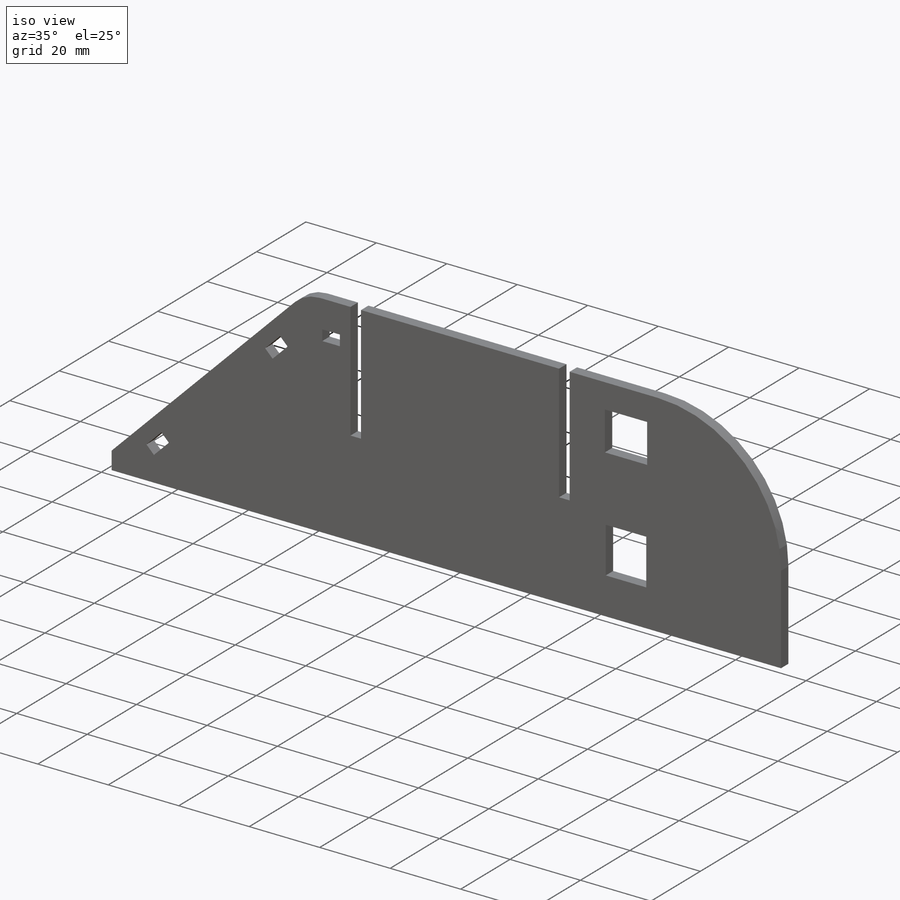
[diagram: iso view]
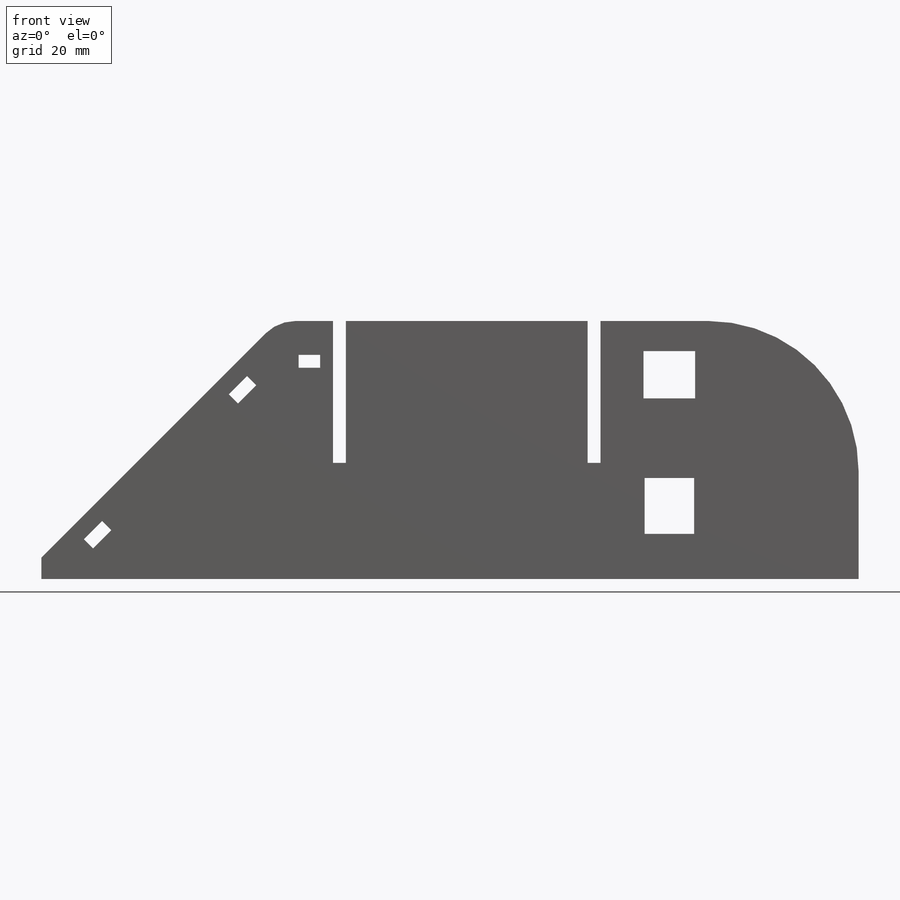
[diagram: front view]
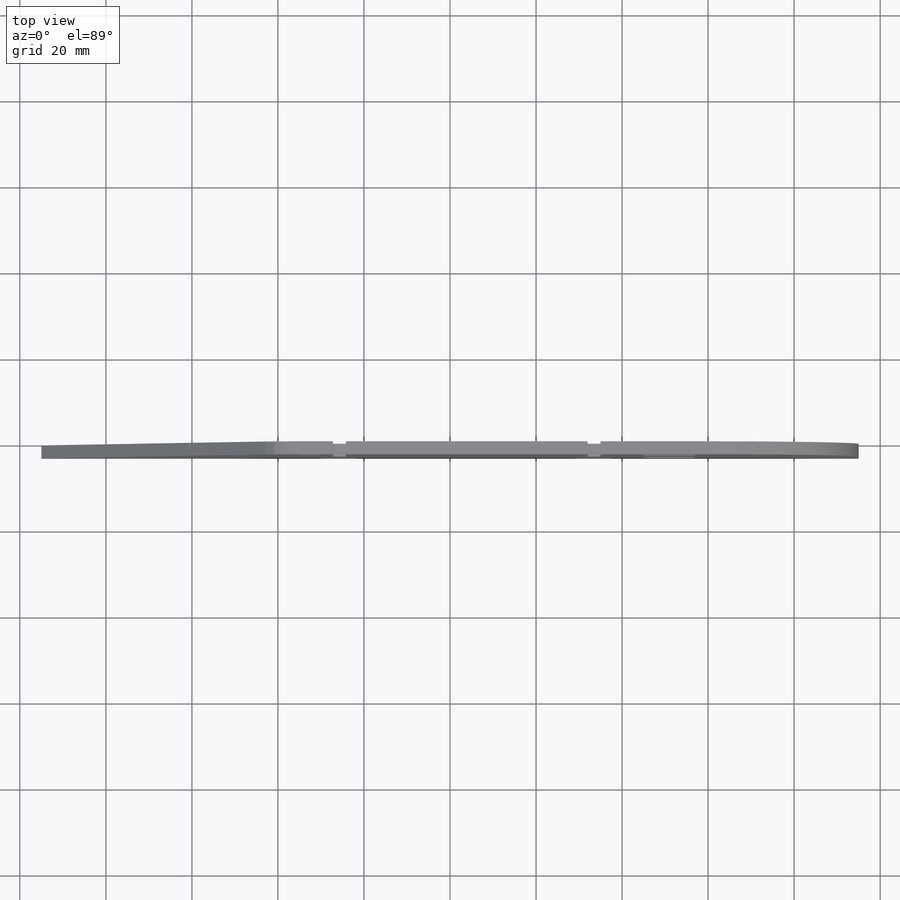
[diagram: top view]
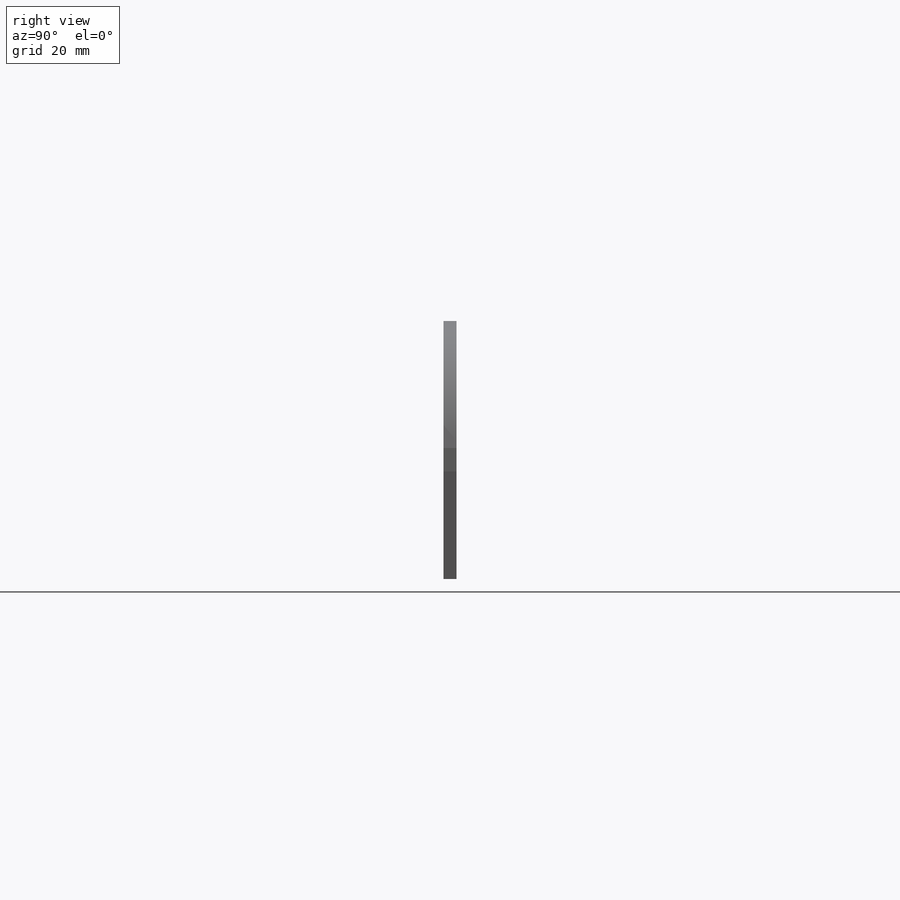
[diagram: right view]
SOLIDWORKS PART (.sldprt)
format: sldprt  version: not decoded by parser v0  size: 550,400 bytes
history: native  units: mm
features: sketch x6, cut_extrude x5, plane x3, fillet x2, material x1, extrude x1 (+8 scaffold rows collapsed)
feature tree (26):
  scaffold x8  (default folders/planes/origin — collapsed)
  material  "Material <sin especificar>"
  plane  "Alzado"
  plane  "Planta"
  plane  "Vista lateral"
  sketch  "Croquis1"  dims[c1.D1=60.0mm c1.D2=190.0mm c1.D3=~7.133433mm c2.D3=90.0deg c3.D3=3.0mm c3.D4=45.0mm c3.D5=~7.280908mm c4.D5=90.0deg c5.D5=3.0mm c5.D6=45.0mm c5.D3=5.0mm c5.D4=55.0mm]
  extrude  "Saliente-Extruir1"  Depth=3mm
  fillet  "Redondeo1"  Radius=35mm
  sketch  "Croquis2"  dims[D1=33.0mm D2=33.0mm D3=3.0mm D4=3.0mm D5=56.2mm D6=60.0mm]
  cut_extrude  "Cortar-Extruir1"  [1 undecoded]
  sketch  "Croquis3"  dims[D1=11.5mm D2=13.0mm D3=10.5mm D4=44.0mm]
  cut_extrude  "Cortar-Extruir2"  [1 undecoded]
  sketch  "Croquis4"  dims[D1=12.0mm D2=11.0mm D3=44.0mm D4=12.5mm]
  cut_extrude  "Cortar-Extruir3"  [1 undecoded]
  fillet  "Redondeo2"  Radius=10mm
  sketch  "Croquis5"  dims[c1.D1=6.0mm c1.D2=3.0mm c1.D3=6.0mm c1.D4=3.0mm c1.D5=~11.795149mm c2.D1=6.0mm c2.D2=3.0mm c2.D3=10.0mm c2.D4=4.0mm c2.D5=3.0mm c2.D6=6.0mm c2.D7=10.0mm c2.D8=4.0mm]
  cut_extrude  "Cortar-Extruir4"  [1 undecoded]
  sketch  "Croquis6"  dims[D1=5.0mm D2=3.0mm D3=7.89mm D4=3.0mm]
  cut_extrude  "Cortar-Extruir5"  [1 undecoded]
decode coverage: 9 of 14 modeling features carry decoded parameters
note: ~ marks probable driven/reference dimensions
note: 5 parameter values undecoded
summary: no parameter record found for 5 features
note: suppression state not decoded; provenance and decode notes live in map.json
